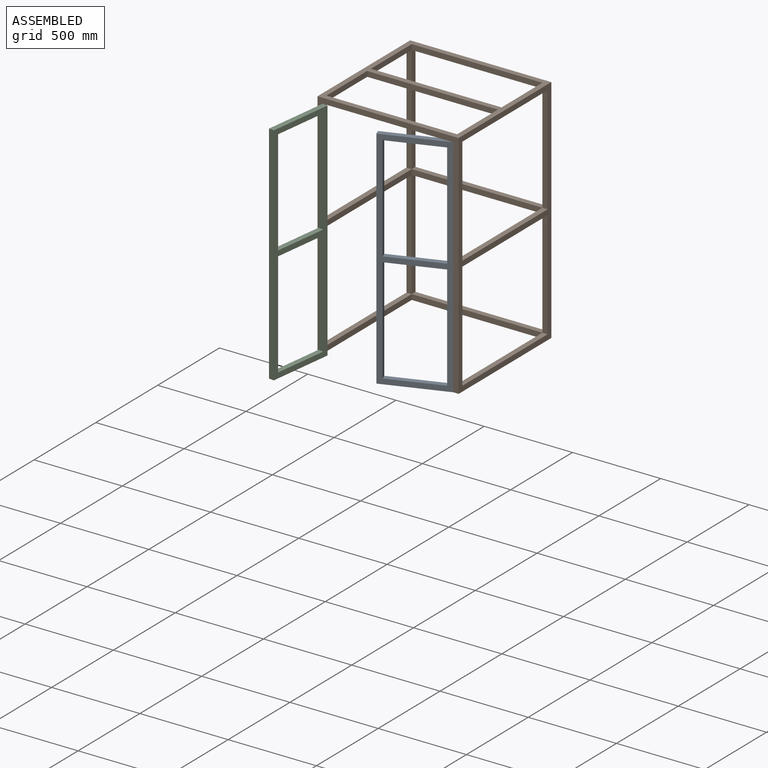
[diagram: assembled view]
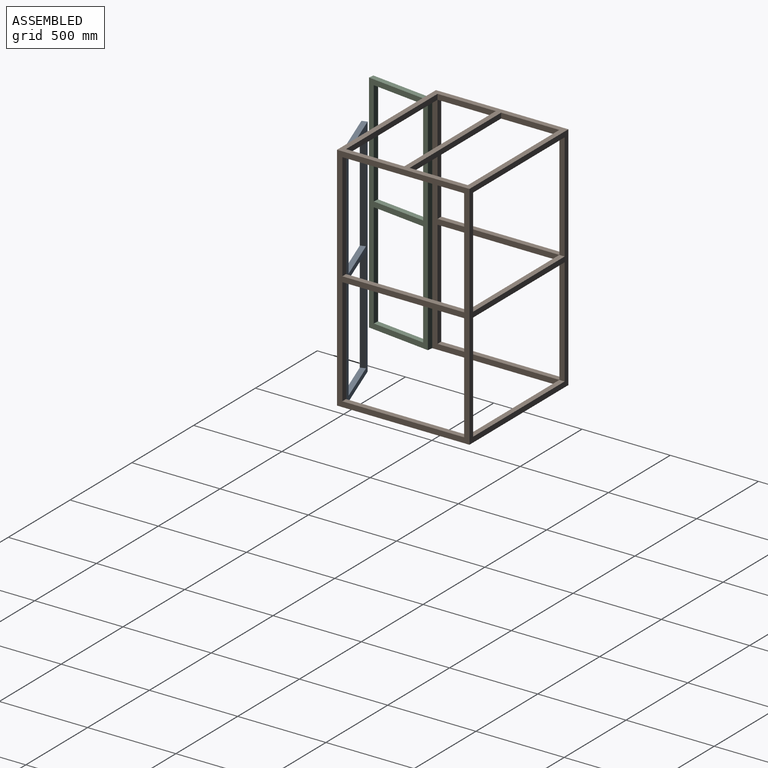
[diagram: assembled view, second angle]
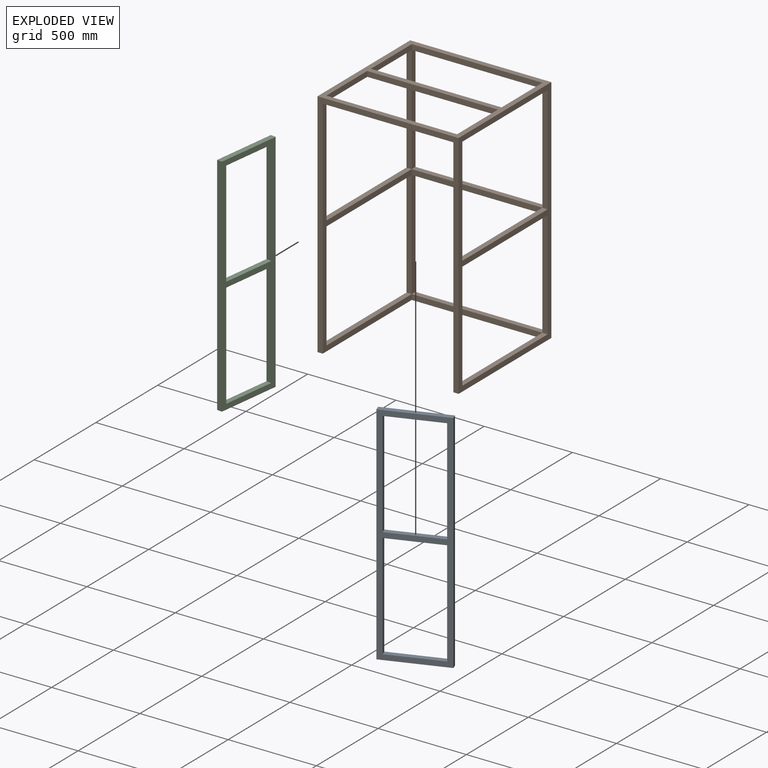
[diagram: exploded view]
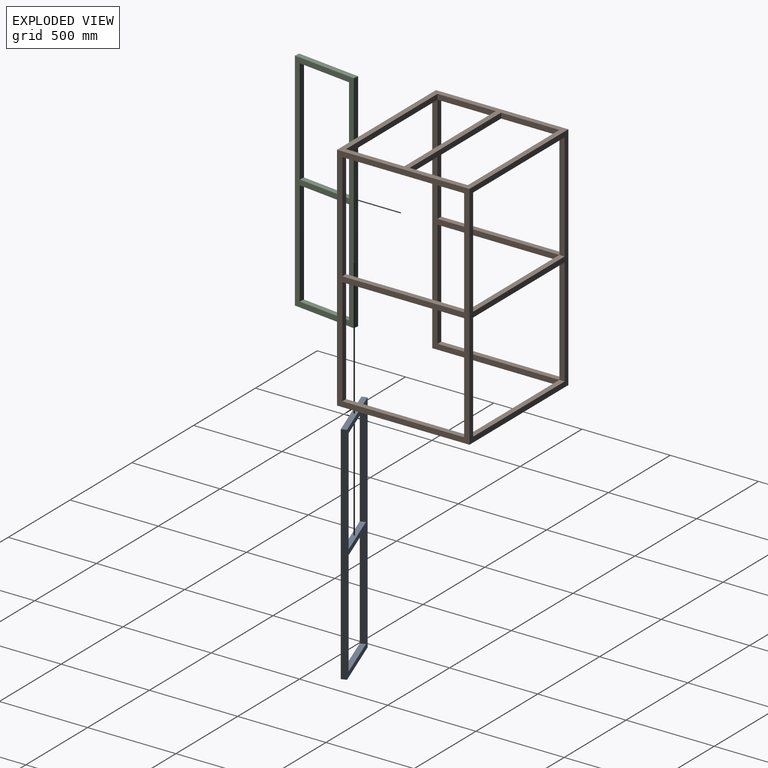
[diagram: exploded view, second angle]
ASSEMBLY  parts=3 mates=2
PART A: 14 faces, bbox 370x30x1280 mm
  f0: plane 1280x370mm, normal (0,-1,0), area 104700mm2, adj f2,f3,f4,f5,f6,f7,f8,f9
  f1: plane 1280x370mm, normal (0,1,0), area 104700mm2, adj f2,f3,f4,f5,f6,f7,f8,f9
  f2: plane 370x30mm, normal (0,0,1), area 11100mm2, adj f0,f1,f3,f5
  f3: plane 1280x30mm, normal (-1,0,0), area 38400mm2, adj f0,f1,f2,f4
  f4: plane 370x30mm, normal (0,0,-1), area 11100mm2, adj f0,f1,f3,f5
  f5: plane 1280x30mm, normal (1,0,0), area 38400mm2, adj f0,f1,f2,f4
  f6: plane 310x30mm, normal (0,0,-1), area 9300mm2, adj f0,f1,f7,f9
  f7: plane 595x30mm, normal (1,0,0), area 17850mm2, adj f0,f1,f6,f8
  f8: plane 310x30mm, normal (0,0,1), area 9300mm2, adj f0,f1,f7,f9
  f9: plane 595x30mm, normal (-1,0,0), area 17850mm2, adj f0,f1,f6,f8
  f10: plane 310x30mm, normal (0,0,-1), area 9300mm2, adj f0,f1,f11,f13
  f11: plane 595x30mm, normal (1,0,0), area 17850mm2, adj f0,f1,f10,f12
  f12: plane 310x30mm, normal (0,0,1), area 9300mm2, adj f0,f1,f11,f13
  f13: plane 595x30mm, normal (-1,0,0), area 17850mm2, adj f0,f1,f10,f12
PART B: 42 faces, bbox 800x750x1310 mm
  f0: plane 800x750mm, normal (0,0,1), area 111600mm2, adj f3,f13,f16,f17,f34,f35,f36,f37
  f1: plane 740x30mm, normal (0,0,-1), area 22200mm2, adj f13,f26,f27,f38
  f2: plane 800x690mm, normal (0,0,-1), area 63600mm2, adj f10,f15,f16,f17,f23,f25,f34,f35
  f3: plane 1310x800mm, normal (0,-1,0), area 100800mm2, adj f0,f4,f16,f17,f22,f32,f33
  f4: plane 800x750mm, normal (0,0,-1), area 67200mm2, adj f3,f13,f16,f17,f30,f32,f33
  f5: plane 740x30mm, normal (0,0,-1), area 22200mm2, adj f13,f28,f29,f31
  f6: plane 690x30mm, normal (0,0,-1), area 20700mm2, adj f7,f17,f21,f33
  f7: plane 610x30mm, normal (0,1,0), area 18300mm2, adj f6,f9,f17,f33
  f8: plane 740x30mm, normal (0,0,1), area 22200mm2, adj f13,f28,f29,f30
  f9: plane 690x30mm, normal (0,0,1), area 20700mm2, adj f7,f17,f21,f33
  f10: plane 610x30mm, normal (0,1,0), area 18300mm2, adj f2,f12,f17,f33
  f11: plane 740x30mm, normal (0,0,1), area 22200mm2, adj f13,f26,f27,f31
  f12: plane 690x30mm, normal (0,0,1), area 20700mm2, adj f10,f17,f25,f33
  f13: plane 1310x800mm, normal (0,1,0), area 145200mm2, adj f0,f1,f4,f5,f8,f11,f16,f17
  f14: plane 610x30mm, normal (0,-1,0), area 18300mm2, adj f16,f18,f20,f29
  f15: plane 610x30mm, normal (0,-1,0), area 18300mm2, adj f2,f16,f24,f27
  f16: plane 1310x750mm, normal (-1,0,0), area 140700mm2, adj f0,f2,f3,f4,f13,f14,f15,f18
  f17: plane 1310x750mm, normal (1,0,0), area 140700mm2, adj f0,f2,f3,f4,f6,f7,f9,f10
  f18: plane 690x30mm, normal (0,0,-1), area 20700mm2, adj f14,f16,f19,f32
  f19: plane 610x30mm, normal (0,1,0), area 18300mm2, adj f16,f18,f20,f32
  f20: plane 690x30mm, normal (0,0,1), area 20700mm2, adj f14,f16,f19,f32
  f21: plane 610x30mm, normal (0,-1,0), area 18300mm2, adj f6,f9,f17,f28
  f22: plane 740x30mm, normal (0,0,-1), area 22200mm2, adj f3,f32,f33,f36
  f23: plane 610x30mm, normal (0,1,0), area 18300mm2, adj f2,f16,f24,f32
  f24: plane 690x30mm, normal (0,0,1), area 20700mm2, adj f15,f16,f23,f32
  f25: plane 610x30mm, normal (0,-1,0), area 18300mm2, adj f2,f12,f17,f26
  f26: plane 610x30mm, normal (-1,0,0), area 18300mm2, adj f1,f11,f13,f25
  f27: plane 610x30mm, normal (1,0,0), area 18300mm2, adj f1,f11,f13,f15
  f28: plane 610x30mm, normal (-1,0,0), area 18300mm2, adj f5,f8,f13,f21
  f29: plane 610x30mm, normal (1,0,0), area 18300mm2, adj f5,f8,f13,f14
  f30: plane 740x30mm, normal (0,-1,0), area 22200mm2, adj f4,f8,f32,f33
  f31: plane 740x30mm, normal (0,-1,0), area 22200mm2, adj f5,f11,f32,f33
  f32: plane 1280x720mm, normal (1,0,0), area 79800mm2, adj f3,f4,f18,f19,f20,f22,f23,f24
  f33: plane 1280x720mm, normal (-1,0,0), area 79800mm2, adj f3,f4,f6,f7,f9,f10,f12,f22
  f34: plane 740x30mm, normal (0,-1,0), area 22200mm2, adj f0,f2,f35,f37
  f35: plane 330x30mm, normal (1,0,0), area 9900mm2, adj f0,f2,f34,f36
  f36: plane 740x30mm, normal (0,1,0), area 22200mm2, adj f0,f22,f35,f37
  f37: plane 330x30mm, normal (-1,0,0), area 9900mm2, adj f0,f2,f34,f36
  f38: plane 740x30mm, normal (0,-1,0), area 22200mm2, adj f0,f1,f39,f41
  f39: plane 330x30mm, normal (1,0,0), area 9900mm2, adj f0,f2,f38,f40
  f40: plane 740x30mm, normal (0,1,0), area 22200mm2, adj f0,f2,f39,f41
  f41: plane 330x30mm, normal (-1,0,0), area 9900mm2, adj f0,f2,f38,f40
PART C: same geometry as A
PLACE A rot(axis=(0,0,1),20deg) t=(256.8,-342.18,723.7)mm
PLACE B t=(70.91,67.9,83.7)mm
PLACE C rot(axis=(0,0,-1),97.4deg) t=(-293.11,-494.42,723.7)mm
MATE parallel A.f2 <-> B.f22  axis (0,0,1) through (256.8,-342.18,1363.7)mm
MATE parallel B.f22 <-> C.f2  axis (0,0,-1) through (70.91,-292.1,1363.7)mm
